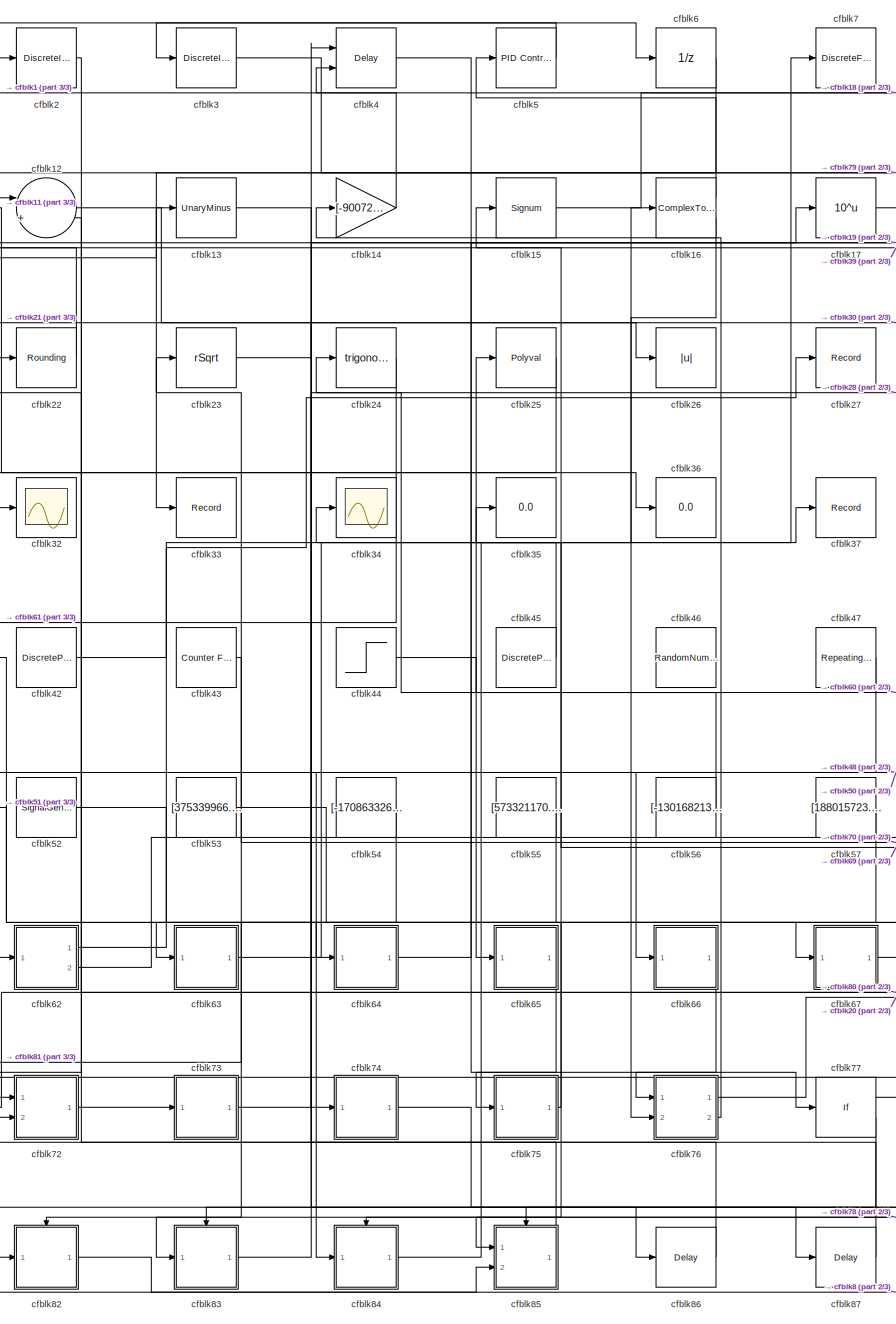
[diagram: root canvas - part 1/3, center side, full height]
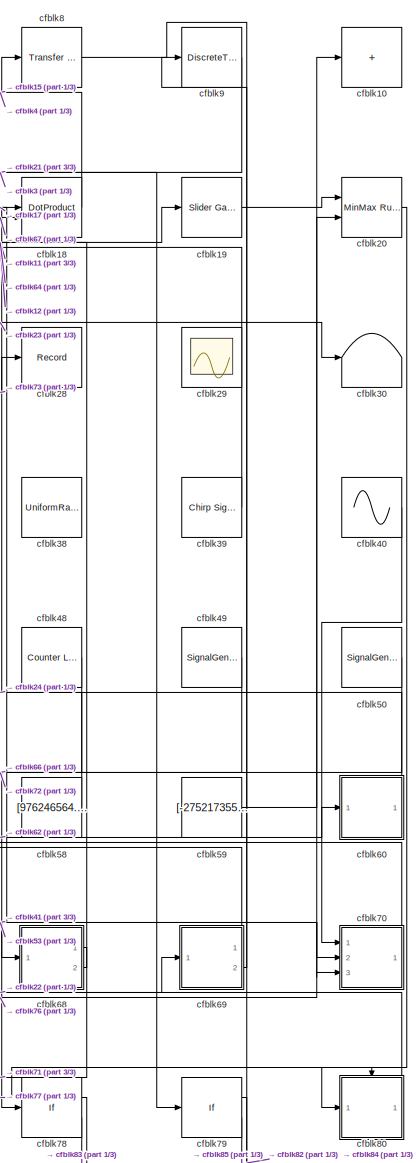
[diagram: root canvas - part 2/3, right side, full height]
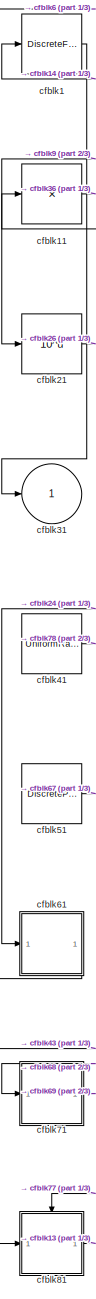
[diagram: root canvas - part 3/3, left side, full height]
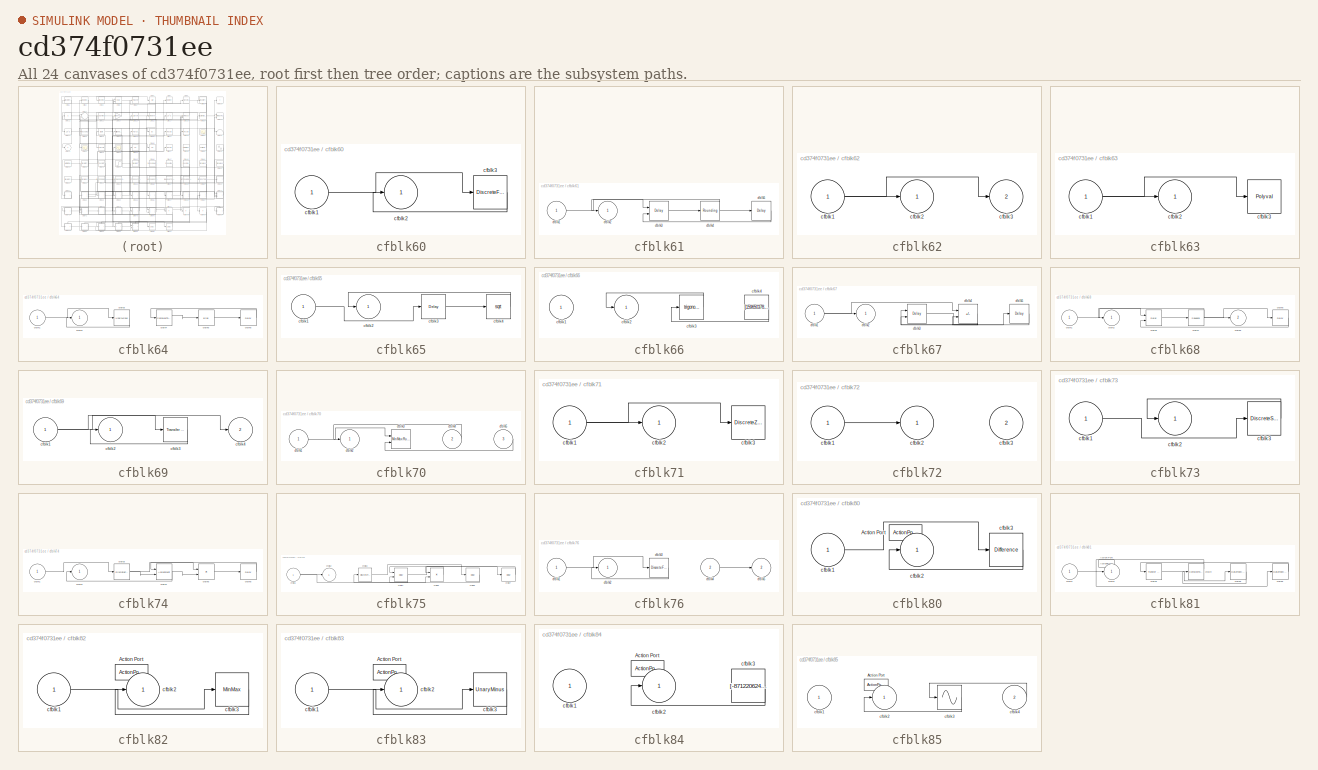
[diagram: thumbnail index - all 24 canvases of the model, root first then tree order]
MODEL slx_cd374f0731ee
KIND model
CONFIG AbsTol = auto
CONFIG EnableMultiTasking = off
CONFIG FixedStep = auto
CONFIG MaxStep = auto
CONFIG MinStep = auto
CONFIG RelTol = 1e-3
CONFIG SampleTimeConstraint = Unconstrained
CONFIG SolverName = VariableStepAuto
CONFIG StartTime = 0.0
CONFIG StopTime = 10.0
BLOCK [DiscreteFir] cfblk1
  InputPortMap = u0
  OutputPortMap = o0
  Ports = [1, 1]
  SampleTime = 1
BLOCK [Sum] cfblk10
  IconShape = rectangular
  Inputs = +
  Ports = [1, 1]
BLOCK [Product] cfblk11
  Inputs = *
  Ports = [1, 1]
BLOCK [Sum] cfblk12
  Inputs = |++
  Ports = [2, 1]
BLOCK [UnaryMinus] cfblk13
BLOCK [Gain] cfblk14
  Gain = [-900721850.191297]
BLOCK [Signum] cfblk15
BLOCK [ComplexToMagnitudeAngle] cfblk16
  Ports = [1, 2]
BLOCK [Math] cfblk17
  Operator = 10^u
  Ports = [1, 1]
BLOCK [DotProduct] cfblk18
  OutDataTypeStr = Inherit: Inherit via internal rule
BLOCK [Reference] cfblk19  REF=simulink/Math
Operations/Slider
Gain
  Ports = [1, 1]
  SourceBlock = simulink/Math\nOperations/Slider\nGain
  SourceProductBaseCode = SL
  SourceType = Slider Gain
BLOCK [DiscreteIntegrator] cfblk2
  ICPrevOutput = DiscIntNeverNeededParam
  ICPrevScaledInput = DiscIntNeverNeededParam
  InitialConditionSetting = Auto
  Ports = [1, 1]
BLOCK [Reference] cfblk20  REF=simulink/Math
Operations/MinMax
Running
Resettable
  Ports = [2, 1]
  SourceBlock = simulink/Math\nOperations/MinMax\nRunning\nResettable
  SourceProductBaseCode = SL
  SourceType = MinMax Running Resettable
BLOCK [Math] cfblk21
  Operator = 10^u
  Ports = [1, 1]
BLOCK [Rounding] cfblk22
BLOCK [Sqrt] cfblk23
  AlgorithmType = Newton-Raphson
  Operator = rSqrt
BLOCK [Trigonometry] cfblk24
  Ports = [1, 1]
BLOCK [Polyval] cfblk25
  Coefs = [ +2.081618890e-019, -1.441693666e-014, +4.719686976e-010, -8.536869453e-006, +1.621573104e-001, -8.087801117e+001 ]
BLOCK [Abs] cfblk26
  SaturateOnIntegerOverflow = off
BLOCK [Record] cfblk27
  FileSettingsInternal = {"entries":[{"content":{"excelSettings":{"content":{},"type":"Streamout.ExcelSettings"}},"type":"Streamout.FileSettingStorage","uuid":"f7dc172e-85bf-4364-b29a-430d7ad068c6"}],"packageUris":["http://schema.mathworks.com/mf0/streamout_blocks/R2020a"],"version":"1.0"}
  Ports = [1]
  SignalsInternal = {"entries":[{"content":{"signals":[{"content":{"blockPath":["sampleModel140/cfblk27"],"channel":[],"dimensions":[1],"domain":"sampleModel140/cfblk27","lineColor":"#fe330a","plots":[1],"port":1,"sid":[""],"signalID":4999,"signalName":"cfblk62:1"},"type":"RecordBlkView.Signal","uuid":"44b31170-ca03-488e-82e6-39e71cb301d7"}]},"type":"RecordBlkView.InputSignals","uuid":"1dfdc35e-76fa-4b09-975a-dfabfb6...<+99ch>
  VisualizationBindings = {"sparklinesplugin":{"info":[{"bindingParametersList":[],"subplotID":1}]}}
BLOCK [Record] cfblk28
  FileSettingsInternal = {"entries":[{"content":{"excelSettings":{"content":{},"type":"Streamout.ExcelSettings"}},"type":"Streamout.FileSettingStorage","uuid":"2a60952b-dc02-4b89-ba4a-331db7f7e870"}],"packageUris":["http://schema.mathworks.com/mf0/streamout_blocks/R2020a"],"version":"1.0"}
  Ports = [1]
  SignalsInternal = {"entries":[{"content":{"signals":[{"content":{"blockPath":["sampleModel140/cfblk28"],"channel":[],"dimensions":[1],"domain":"sampleModel140/cfblk28","lineColor":"#22b573","plots":[1],"port":1,"sid":[""],"signalID":5003,"signalName":"cfblk73"},"type":"RecordBlkView.Signal","uuid":"e06fc34c-2e52-42d5-b842-92c8cd7ea3f0"}]},"type":"RecordBlkView.InputSignals","uuid":"c913dc81-a0a4-4d49-a666-7e3ebed67...<+97ch>
  VisualizationBindings = {"sparklinesplugin":{"info":[{"bindingParametersList":[],"subplotID":1}]}}
BLOCK [Scope] cfblk29
  Floating = on
  NumInputPorts = 1
  Ports = []
BLOCK [DiscreteIntegrator] cfblk3
  ICPrevOutput = DiscIntNeverNeededParam
  ICPrevScaledInput = DiscIntNeverNeededParam
  InitialConditionSetting = Auto
  Ports = [1, 1]
BLOCK [Terminator] cfblk30
BLOCK [Outport] cfblk31
BLOCK [Scope] cfblk32
  Floating = off
  NumInputPorts = 1
  Ports = [1]
BLOCK [Record] cfblk33
  FileSettingsInternal = {"entries":[{"content":{"excelSettings":{"content":{},"type":"Streamout.ExcelSettings"}},"type":"Streamout.FileSettingStorage","uuid":"16210966-370f-487a-be88-b20549b0c51c"}],"packageUris":["http://schema.mathworks.com/mf0/streamout_blocks/R2020a"],"version":"1.0"}
  Ports = [1]
  SignalsInternal = {"entries":[{"content":{"signals":[{"content":{"blockPath":["sampleModel140/cfblk33"],"channel":[],"dimensions":[1],"domain":"sampleModel140/cfblk33","lineColor":"#0072bd","plots":[1],"port":1,"sid":[""],"signalID":5007,"signalName":"cfblk6"},"type":"RecordBlkView.Signal","uuid":"1acb6f7d-3201-4389-8d54-da06513cf801"}]},"type":"RecordBlkView.InputSignals","uuid":"1d47643f-2b85-4c86-9125-85e0580eef...<+96ch>
  VisualizationBindings = {"sparklinesplugin":{"info":[{"bindingParametersList":[],"subplotID":1}]}}
BLOCK [Scope] cfblk34
  Floating = off
  NumInputPorts = 1
  Ports = [1]
BLOCK [Display] cfblk35
  Decimation = 1
  Ports = [1]
BLOCK [Display] cfblk36
  Decimation = 1
  Ports = [1]
BLOCK [Record] cfblk37
  FileSettingsInternal = {"entries":[{"content":{"excelSettings":{"content":{},"type":"Streamout.ExcelSettings"}},"type":"Streamout.FileSettingStorage","uuid":"14486def-ea98-4c8d-ac38-063aaeb98b28"}],"packageUris":["http://schema.mathworks.com/mf0/streamout_blocks/R2020a"],"version":"1.0"}
  Ports = [1]
  SignalsInternal = {"entries":[{"content":{"signals":[{"content":{"blockPath":["sampleModel140/cfblk37"],"channel":[],"dimensions":[1],"domain":"sampleModel140/cfblk37","lineColor":"#d95319","plots":[1],"port":1,"sid":[""],"signalID":5011,"signalName":"cfblk84"},"type":"RecordBlkView.Signal","uuid":"8f6119ac-8ee8-4970-bbc5-a0b11d94bc15"}]},"type":"RecordBlkView.InputSignals","uuid":"c6b40365-cea3-4913-9b63-00ff22d66...<+97ch>
  VisualizationBindings = {"sparklinesplugin":{"info":[{"bindingParametersList":[],"subplotID":1}]}}
BLOCK [UniformRandomNumber] cfblk38
  Maximum = [4264926929.701888]
  Minimum = [-3035939554.229924]
  SampleTime = 0.1
  Seed = [60166904.000000]
BLOCK [Reference] cfblk39  REF=simulink/Sources/Chirp Signal
  Ports = [0, 1]
  SourceBlock = simulink/Sources/Chirp Signal
  SourceProductBaseCode = SL
  SourceType = chirp
BLOCK [Delay] cfblk4
  InputPortMap = u0,e6
  Ports = [2, 1]
  SampleTime = 1
  ShowEnablePort = on
BLOCK [Sin] cfblk40
  Amplitude = [-181022692.650693]
  Bias = [660369983.554749]
  Ports = [0, 1]
  SampleTime = 0
BLOCK [UniformRandomNumber] cfblk41
  Maximum = [9269629491.949644]
  Minimum = [-4870337137.228113]
  SampleTime = 0.1
  Seed = [65552154.000000]
BLOCK [DiscretePulseGenerator] cfblk42
  Amplitude = [-659661754.580511]
  Period = [42044886.973960]
  PhaseDelay = [2.000000]
  Ports = [0, 1]
  PulseType = Time based
  PulseWidth = 5
BLOCK [Reference] cfblk43  REF=simulink/Sources/Counter
Free-Running
  Ports = [0, 1]
  SourceBlock = simulink/Sources/Counter\nFree-Running
  SourceProductBaseCode = SL
  SourceType = Counter Free-Running
BLOCK [Step] cfblk44
  After = [243619837.616728]
  Before = [-869286196.761883]
  SampleTime = 0
  Time = [23.000000]
BLOCK [DiscretePulseGenerator] cfblk45
  Amplitude = [-997726001.498316]
  Period = [30101274.943026]
  PhaseDelay = [1.000000]
  Ports = [0, 1]
  PulseType = Time based
  PulseWidth = 5
BLOCK [RandomNumber] cfblk46
  Mean = [-29909.071148]
  SampleTime = 0.1
  Seed = [277614957.000000]
  Variance = [18577.204154]
BLOCK [Reference] cfblk47  REF=simulink/Sources/Repeating
Sequence
Stair
  Ports = [0, 1]
  SourceBlock = simulink/Sources/Repeating\nSequence\nStair
  SourceProductBaseCode = SL
  SourceType = Repeating Sequence Stair
BLOCK [Reference] cfblk48  REF=simulink/Sources/Counter
Limited
  Ports = [0, 1]
  SourceBlock = simulink/Sources/Counter\nLimited
  SourceProductBaseCode = SL
  SourceType = Counter Limited
BLOCK [SignalGenerator] cfblk49
  Amplitude = [37695379.344834]
  Ports = [0, 1]
  Units = rad/sec
  WaveForm = square
BLOCK [Reference] cfblk5  REF=slpidlib/PID Controller
  Ports = [1, 1]
  SourceBlock = slpidlib/PID Controller
  SourceProductBaseCode = SL
  SourceType = PID 1dof
BLOCK [SignalGenerator] cfblk50
  Amplitude = [-270396311.302956]
  Ports = [0, 1]
  WaveForm = square
BLOCK [DiscretePulseGenerator] cfblk51
  Amplitude = [-700277655.752737]
  Period = [70162605.232993]
  PhaseDelay = [7.000000]
  Ports = [0, 1]
  PulseType = Time based
  PulseWidth = 5
BLOCK [SignalGenerator] cfblk52
  Amplitude = [862125545.845058]
  Ports = [0, 1]
  WaveForm = sawtooth
BLOCK [Constant] cfblk53
  SampleTime = 1
  Value = [375339966.909652]
BLOCK [Constant] cfblk54
  SampleTime = 1
  Value = [-170863326.489674]
BLOCK [Constant] cfblk55
  SampleTime = 1
  Value = [573321170.650312]
BLOCK [Constant] cfblk56
  SampleTime = 1
  Value = [-130168213.207783]
BLOCK [Constant] cfblk57
  SampleTime = 1
  Value = [188015723.022929]
BLOCK [Constant] cfblk58
  SampleTime = 1
  Value = [976246564.933237]
BLOCK [Constant] cfblk59
  SampleTime = 1
  Value = [-275217355.528524]
BLOCK [UnitDelay] cfblk6
  HasFrameUpgradeWarning = on
BLOCK [SubSystem] cfblk60
  Ports = [1, 1]
  RequestExecContextInheritance = off
BLOCK [Inport] cfblk60/cfblk1
BLOCK [Outport] cfblk60/cfblk2
BLOCK [DiscreteFir] cfblk60/cfblk3
  InputPortMap = u0
  OutputPortMap = o0
  Ports = [1, 1]
  SampleTime = 1
BLOCK [SubSystem] cfblk61
  Ports = [1, 1]
  RequestExecContextInheritance = off
BLOCK [Inport] cfblk61/cfblk1
BLOCK [Outport] cfblk61/cfblk2
BLOCK [Delay] cfblk61/cfblk3
  DelayLengthSource = Input port
  InputPortMap = u0,p1
  Ports = [2, 1]
  SampleTime = 1
BLOCK [Rounding] cfblk61/cfblk4
BLOCK [Delay] cfblk61/cfblk5
  InputPortMap = u0
  Ports = [1, 1]
  SampleTime = 1
BLOCK [SubSystem] cfblk62
  Ports = [1, 2]
  RequestExecContextInheritance = off
BLOCK [Inport] cfblk62/cfblk1
BLOCK [Outport] cfblk62/cfblk2
BLOCK [Outport] cfblk62/cfblk3
  Port = 2
BLOCK [SubSystem] cfblk63
  Ports = [1, 1]
  RequestExecContextInheritance = off
BLOCK [Inport] cfblk63/cfblk1
BLOCK [Outport] cfblk63/cfblk2
BLOCK [Polyval] cfblk63/cfblk3
  Coefs = [ +2.081618890e-019, -1.441693666e-014, +4.719686976e-010, -8.536869453e-006, +1.621573104e-001, -8.087801117e+001 ]
BLOCK [SubSystem] cfblk64
  Ports = [1, 1]
  RequestExecContextInheritance = off
BLOCK [Inport] cfblk64/cfblk1
BLOCK [Outport] cfblk64/cfblk2
BLOCK [UnaryMinus] cfblk64/cfblk3
BLOCK [ComplexToRealImag] cfblk64/cfblk4
  Ports = [1, 2]
BLOCK [Bias] cfblk64/cfblk5
  Bias = [622856134.513516]
  SaturateOnIntegerOverflow = off
BLOCK [Delay] cfblk64/cfblk6
  InputPortMap = u0
  Ports = [1, 1]
  SampleTime = 1
BLOCK [SubSystem] cfblk65
  Ports = [1, 1]
  RequestExecContextInheritance = off
BLOCK [Inport] cfblk65/cfblk1
BLOCK [Outport] cfblk65/cfblk2
BLOCK [Delay] cfblk65/cfblk3
  InputPortMap = u0
  Ports = [1, 1]
  SampleTime = 1
BLOCK [Sqrt] cfblk65/cfblk4
BLOCK [SubSystem] cfblk66
  Ports = [1, 1]
  RequestExecContextInheritance = off
BLOCK [Inport] cfblk66/cfblk1
BLOCK [Outport] cfblk66/cfblk2
BLOCK [Trigonometry] cfblk66/cfblk3
  Ports = [1, 1]
BLOCK [Constant] cfblk66/cfblk4
  SampleTime = 1
  Value = [159650378.742997]
BLOCK [SubSystem] cfblk67
  Ports = [1, 1]
  RequestExecContextInheritance = off
BLOCK [Inport] cfblk67/cfblk1
BLOCK [Outport] cfblk67/cfblk2
BLOCK [Delay] cfblk67/cfblk3
  DelayLengthSource = Input port
  InputPortMap = u0,p1
  Ports = [2, 1]
  SampleTime = 1
BLOCK [Sum] cfblk67/cfblk4
  IconShape = rectangular
  Inputs = -+
  Ports = [2, 1]
BLOCK [Delay] cfblk67/cfblk5
  InputPortMap = u0
  Ports = [1, 1]
  SampleTime = 1
BLOCK [SubSystem] cfblk68
  Ports = [1, 2]
  RequestExecContextInheritance = off
BLOCK [Inport] cfblk68/cfblk1
BLOCK [Outport] cfblk68/cfblk2
BLOCK [Delay] cfblk68/cfblk3
  InputPortMap = u0,e6
  Ports = [2, 1]
  SampleTime = 1
  ShowEnablePort = on
BLOCK [Squeeze] cfblk68/cfblk4
BLOCK [Outport] cfblk68/cfblk5
  Port = 2
BLOCK [Delay] cfblk68/cfblk6
  InputPortMap = u0
  Ports = [1, 1]
  SampleTime = 1
BLOCK [SubSystem] cfblk69
  Ports = [1, 2]
  RequestExecContextInheritance = off
BLOCK [Inport] cfblk69/cfblk1
BLOCK [Outport] cfblk69/cfblk2
BLOCK [Reference] cfblk69/cfblk3  REF=simulink/Discrete/Transfer Fcn
Real Zero
  Ports = [1, 1]
  SourceBlock = simulink/Discrete/Transfer Fcn\nReal Zero
  SourceProductBaseCode = SL
  SourceType = Transfer Fcn Real Zero
BLOCK [Outport] cfblk69/cfblk4
  Port = 2
BLOCK [DiscreteFir] cfblk7
  InputPortMap = u0
  OutputPortMap = o0
  Ports = [1, 1]
  SampleTime = 1
BLOCK [SubSystem] cfblk70
  Ports = [3, 1]
  RequestExecContextInheritance = off
BLOCK [Inport] cfblk70/cfblk1
BLOCK [Outport] cfblk70/cfblk2
BLOCK [Reference] cfblk70/cfblk3  REF=simulink/Math
Operations/MinMax
Running
Resettable
  Ports = [2, 1]
  SourceBlock = simulink/Math\nOperations/MinMax\nRunning\nResettable
  SourceProductBaseCode = SL
  SourceType = MinMax Running Resettable
BLOCK [Inport] cfblk70/cfblk4
  Port = 2
BLOCK [Inport] cfblk70/cfblk5
  Port = 3
BLOCK [SubSystem] cfblk71
  Ports = [1, 1]
  RequestExecContextInheritance = off
BLOCK [Inport] cfblk71/cfblk1
BLOCK [Outport] cfblk71/cfblk2
BLOCK [DiscreteZeroPole] cfblk71/cfblk3
  Gain = 1
  Poles = [0 0.5]
BLOCK [SubSystem] cfblk72
  Ports = [2, 1]
  RequestExecContextInheritance = off
BLOCK [Inport] cfblk72/cfblk1
BLOCK [Outport] cfblk72/cfblk2
BLOCK [Inport] cfblk72/cfblk3
  Port = 2
BLOCK [SubSystem] cfblk73
  Ports = [1, 1]
  RequestExecContextInheritance = off
BLOCK [Inport] cfblk73/cfblk1
BLOCK [Outport] cfblk73/cfblk2
BLOCK [DiscreteStateSpace] cfblk73/cfblk3
BLOCK [SubSystem] cfblk74
  Ports = [1, 1]
  RequestExecContextInheritance = off
BLOCK [Inport] cfblk74/cfblk1
BLOCK [Outport] cfblk74/cfblk2
BLOCK [DiscreteFilter] cfblk74/cfblk3
  InputPortMap = u0
  Ports = [1, 1]
  SampleTime = 1
BLOCK [Assignment] cfblk74/cfblk4
  DiagnosticForDimensions = Warning
  IndexOptions = Index vector (dialog)
  Indices = 1
  OutputSizes = 1
  Ports = [2, 1]
BLOCK [Product] cfblk74/cfblk5
  Ports = [2, 1]
BLOCK [Delay] cfblk74/cfblk6
  InputPortMap = u0
  Ports = [1, 1]
  SampleTime = 1
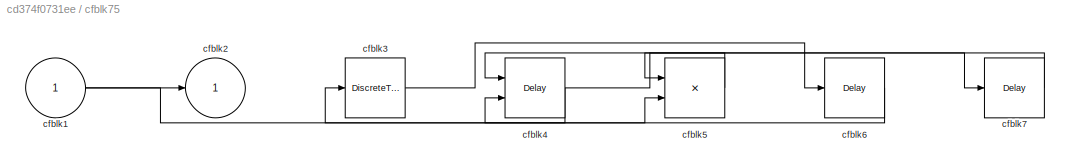
BLOCK [SubSystem] cfblk75
  Ports = [1, 1]
  RequestExecContextInheritance = off
BLOCK [Inport] cfblk75/cfblk1
BLOCK [Outport] cfblk75/cfblk2
BLOCK [DiscreteTransferFcn] cfblk75/cfblk3
  InputPortMap = u0
  Ports = [1, 1]
  SampleTime = 1
BLOCK [Delay] cfblk75/cfblk4
  DelayLengthSource = Input port
  InputPortMap = u0,p1
  Ports = [2, 1]
  SampleTime = 1
BLOCK [Product] cfblk75/cfblk5
  Ports = [2, 1]
BLOCK [Delay] cfblk75/cfblk6
  InputPortMap = u0
  Ports = [1, 1]
  SampleTime = 1
BLOCK [Delay] cfblk75/cfblk7
  InputPortMap = u0
  Ports = [1, 1]
  SampleTime = 1
BLOCK [SubSystem] cfblk76
  Ports = [2, 2]
  RequestExecContextInheritance = off
BLOCK [Inport] cfblk76/cfblk1
BLOCK [Outport] cfblk76/cfblk2
BLOCK [DiscreteFilter] cfblk76/cfblk3
  InputPortMap = u0
  Ports = [1, 1]
  SampleTime = 1
BLOCK [Inport] cfblk76/cfblk4
  Port = 2
BLOCK [Outport] cfblk76/cfblk5
  Port = 2
BLOCK [If] cfblk77
  IfExpression = u1 >= 0
  Ports = [1, 2]
  SampleTime = 1
BLOCK [If] cfblk78
  IfExpression = u1 >= 0
  Ports = [1, 2]
  SampleTime = 1
BLOCK [If] cfblk79
  IfExpression = u1 >= 0
  Ports = [1, 2]
  SampleTime = 1
BLOCK [Reference] cfblk8  REF=simulink/Discrete/Transfer Fcn
First Order
  Ports = [1, 1]
  SourceBlock = simulink/Discrete/Transfer Fcn\nFirst Order
  SourceProductBaseCode = SL
  SourceType = First Order Transfer Fcn
BLOCK [SubSystem] cfblk80
  Ports = [1, 1, 0, 0, 0, 0, 0, 1]
  RequestExecContextInheritance = off
  TreatAsAtomicUnit = on
BLOCK [ActionPort] cfblk80/Action Port
  ActionPortLabel = if(u1 >= 0)
BLOCK [Inport] cfblk80/cfblk1
BLOCK [Outport] cfblk80/cfblk2
BLOCK [Reference] cfblk80/cfblk3  REF=simulink/Discrete/Difference
  Ports = [1, 1]
  SourceBlock = simulink/Discrete/Difference
  SourceProductBaseCode = SL
  SourceType = Difference
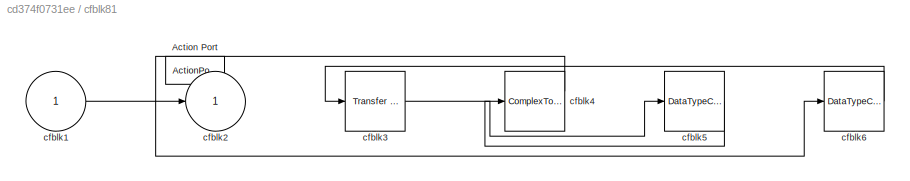
BLOCK [SubSystem] cfblk81
  Ports = [1, 1, 0, 0, 0, 0, 0, 1]
  RequestExecContextInheritance = off
  TreatAsAtomicUnit = on
BLOCK [ActionPort] cfblk81/Action Port
  ActionPortLabel = else
BLOCK [Inport] cfblk81/cfblk1
BLOCK [Outport] cfblk81/cfblk2
BLOCK [Reference] cfblk81/cfblk3  REF=simulink/Discrete/Transfer Fcn
Real Zero
  Ports = [1, 1]
  SourceBlock = simulink/Discrete/Transfer Fcn\nReal Zero
  SourceProductBaseCode = SL
  SourceType = Transfer Fcn Real Zero
BLOCK [ComplexToMagnitudeAngle] cfblk81/cfblk4
  Ports = [1, 2]
BLOCK [DataTypeConversion] cfblk81/cfblk5
  RndMeth = Floor
  SaturateOnIntegerOverflow = off
BLOCK [DataTypeConversion] cfblk81/cfblk6
  RndMeth = Floor
  SaturateOnIntegerOverflow = off
BLOCK [SubSystem] cfblk82
  Ports = [1, 1, 0, 0, 0, 0, 0, 1]
  RequestExecContextInheritance = off
  TreatAsAtomicUnit = on
BLOCK [ActionPort] cfblk82/Action Port
  ActionPortLabel = if(u1 >= 0)
BLOCK [Inport] cfblk82/cfblk1
BLOCK [Outport] cfblk82/cfblk2
BLOCK [MinMax] cfblk82/cfblk3
  Ports = [1, 1]
BLOCK [SubSystem] cfblk83
  Ports = [1, 1, 0, 0, 0, 0, 0, 1]
  RequestExecContextInheritance = off
  TreatAsAtomicUnit = on
BLOCK [ActionPort] cfblk83/Action Port
  ActionPortLabel = else
BLOCK [Inport] cfblk83/cfblk1
BLOCK [Outport] cfblk83/cfblk2
BLOCK [UnaryMinus] cfblk83/cfblk3
BLOCK [SubSystem] cfblk84
  Ports = [1, 1, 0, 0, 0, 0, 0, 1]
  RequestExecContextInheritance = off
  TreatAsAtomicUnit = on
BLOCK [ActionPort] cfblk84/Action Port
  ActionPortLabel = if(u1 >= 0)
BLOCK [Inport] cfblk84/cfblk1
BLOCK [Outport] cfblk84/cfblk2
BLOCK [Constant] cfblk84/cfblk3
  SampleTime = 1
  Value = [-871220624.482692]
BLOCK [SubSystem] cfblk85
  Ports = [2, 1, 0, 0, 0, 0, 0, 1]
  RequestExecContextInheritance = off
  TreatAsAtomicUnit = on
BLOCK [ActionPort] cfblk85/Action Port
  ActionPortLabel = else
BLOCK [Inport] cfblk85/cfblk1
BLOCK [Outport] cfblk85/cfblk2
BLOCK [Sin] cfblk85/cfblk3
  Ports = [1, 1]
  SampleTime = 0
  TimeSource = Use external signal
BLOCK [Inport] cfblk85/cfblk4
  Port = 2
BLOCK [Delay] cfblk86
  InputPortMap = u0
  Ports = [1, 1]
  SampleTime = 1
BLOCK [Delay] cfblk87
  InputPortMap = u0
  Ports = [1, 1]
  SampleTime = 1
BLOCK [DiscreteTransferFcn] cfblk9
  InputPortMap = u0
  Ports = [1, 1]
  SampleTime = 1
LINE cfblk11:1 -> cfblk36:1
LINE cfblk12:1 -> cfblk74:1
LINE cfblk13:1 -> cfblk86:1
LINE cfblk14:1 -> cfblk1:1
LINE cfblk15:1 -> cfblk8:1
LINE cfblk16:1 -> cfblk5:1
LINE cfblk16:2 -> cfblk76:2
LINE cfblk17:1 -> cfblk70:2
LINE cfblk18:1 -> cfblk4:2
LINE cfblk19:1 -> cfblk20:1
LINE cfblk1:1 -> cfblk31:1
LINE cfblk20:1 -> cfblk80:1
LINE cfblk21:1 -> cfblk26:1
LINE cfblk22:1 -> cfblk2:1
LINE cfblk23:1 -> cfblk30:1
LINE cfblk24:1 -> cfblk61:1
LINE cfblk25:1 -> cfblk32:1
LINE cfblk2:1 -> cfblk72:1
LINE cfblk39:1 -> cfblk12:1
LINE cfblk3:1 -> cfblk79:1
LINE cfblk40:1 -> cfblk70:1
LINE cfblk41:1 -> cfblk78:1
LINE cfblk42:1 -> cfblk16:1
LINE cfblk43:1 -> cfblk81:1
LINE cfblk44:1 -> cfblk65:1
LINE cfblk45:1 -> cfblk34:1
LINE cfblk47:1 -> cfblk64:1
LINE cfblk48:1 -> cfblk66:1
LINE cfblk49:1 -> cfblk68:1
LINE cfblk4:1 -> cfblk77:1
LINE cfblk50:1 -> cfblk72:2
LINE cfblk51:1 -> cfblk67:1
LINE cfblk52:1 -> cfblk84:1
LINE cfblk53:1 -> cfblk70:3
LINE cfblk54:1 -> cfblk63:1
LINE cfblk55:1 -> cfblk83:1
LINE cfblk56:1 -> cfblk25:1
LINE cfblk57:1 -> cfblk85:1
LINE cfblk58:1 -> cfblk18:1
LINE cfblk59:1 -> cfblk10:1
LINE cfblk5:1 -> cfblk3:1
LINE cfblk60/cfblk1:1 -> cfblk60/cfblk3:1
LINE cfblk60/cfblk3:1 -> cfblk60/cfblk2:1
LINE cfblk60:1 -> cfblk24:1
LINE cfblk61/cfblk1:1 -> cfblk61/cfblk3:1
LINE cfblk61/cfblk3:1 -> cfblk61/cfblk4:1
NET cfblk61/cfblk4:1 -> cfblk61/cfblk2:1, cfblk61/cfblk5:1
LINE cfblk61/cfblk5:1 -> cfblk61/cfblk3:2
LINE cfblk61:1 -> cfblk6:1
NET cfblk62/cfblk1:1 -> cfblk62/cfblk2:1, cfblk62/cfblk3:1
LINE cfblk62:1 -> cfblk27:1
LINE cfblk62:2 -> cfblk60:1
NET cfblk63/cfblk1:1 -> cfblk63/cfblk2:1, cfblk63/cfblk3:1
LINE cfblk63:1 -> cfblk7:1
LINE cfblk64/cfblk1:1 -> cfblk64/cfblk3:1
LINE cfblk64/cfblk3:1 -> cfblk64/cfblk2:1
LINE cfblk64/cfblk4:1 -> cfblk64/cfblk5:1
LINE cfblk64/cfblk5:1 -> cfblk64/cfblk6:1
LINE cfblk64/cfblk6:1 -> cfblk64/cfblk4:1
LINE cfblk64:1 -> cfblk19:1
LINE cfblk65/cfblk1:1 -> cfblk65/cfblk3:1
LINE cfblk65/cfblk3:1 -> cfblk65/cfblk4:1
LINE cfblk65/cfblk4:1 -> cfblk65/cfblk2:1
LINE cfblk65:1 -> cfblk75:1
LINE cfblk66/cfblk3:1 -> cfblk66/cfblk2:1
LINE cfblk66/cfblk4:1 -> cfblk66/cfblk3:1
LINE cfblk66:1 -> cfblk76:1
NET cfblk67/cfblk1:1 -> cfblk67/cfblk2:1, cfblk67/cfblk4:1
LINE cfblk67/cfblk3:1 -> cfblk67/cfblk5:1
NET cfblk67/cfblk4:1 -> cfblk67/cfblk3:1, cfblk67/cfblk3:2
LINE cfblk67/cfblk5:1 -> cfblk67/cfblk4:2
LINE cfblk67:1 -> cfblk18:2
LINE cfblk68/cfblk1:1 -> cfblk68/cfblk3:1
LINE cfblk68/cfblk3:1 -> cfblk68/cfblk4:1
NET cfblk68/cfblk4:1 -> cfblk68/cfblk2:1, cfblk68/cfblk5:1, cfblk68/cfblk6:1
LINE cfblk68/cfblk6:1 -> cfblk68/cfblk3:2
LINE cfblk68:1 -> cfblk71:1
LINE cfblk68:2 -> cfblk11:1
NET cfblk69/cfblk1:1 -> cfblk69/cfblk3:1, cfblk69/cfblk4:1
LINE cfblk69/cfblk3:1 -> cfblk69/cfblk2:1
LINE cfblk69:1 -> cfblk15:1
LINE cfblk69:2 -> cfblk9:1
LINE cfblk6:1 -> cfblk33:1
LINE cfblk70/cfblk1:1 -> cfblk70/cfblk3:1
LINE cfblk70/cfblk4:1 -> cfblk70/cfblk2:1
LINE cfblk70/cfblk5:1 -> cfblk70/cfblk3:2
LINE cfblk70:1 -> cfblk23:1
NET cfblk71/cfblk1:1 -> cfblk71/cfblk2:1, cfblk71/cfblk3:1
LINE cfblk71:1 -> cfblk69:1
LINE cfblk72/cfblk1:1 -> cfblk72/cfblk2:1
LINE cfblk72:1 -> cfblk73:1
LINE cfblk73/cfblk1:1 -> cfblk73/cfblk3:1
LINE cfblk73/cfblk3:1 -> cfblk73/cfblk2:1
LINE cfblk73:1 -> cfblk28:1
LINE cfblk74/cfblk1:1 -> cfblk74/cfblk3:1
NET cfblk74/cfblk3:1 -> cfblk74/cfblk4:2, cfblk74/cfblk5:1
NET cfblk74/cfblk4:1 -> cfblk74/cfblk2:1, cfblk74/cfblk5:2
LINE cfblk74/cfblk5:1 -> cfblk74/cfblk6:1
LINE cfblk74/cfblk6:1 -> cfblk74/cfblk4:1
LINE cfblk74:1 -> cfblk87:1
NET cfblk75/cfblk1:1 -> cfblk75/cfblk2:1, cfblk75/cfblk5:2
LINE cfblk75/cfblk3:1 -> cfblk75/cfblk6:1
NET cfblk75/cfblk4:1 -> cfblk75/cfblk3:1, cfblk75/cfblk7:1
LINE cfblk75/cfblk5:1 -> cfblk75/cfblk4:1
LINE cfblk75/cfblk6:1 -> cfblk75/cfblk4:2
LINE cfblk75/cfblk7:1 -> cfblk75/cfblk5:1
LINE cfblk75:1 -> cfblk35:1
LINE cfblk76/cfblk1:1 -> cfblk76/cfblk3:1
LINE cfblk76/cfblk3:1 -> cfblk76/cfblk2:1
LINE cfblk76/cfblk4:1 -> cfblk76/cfblk5:1
LINE cfblk76:1 -> cfblk20:2
LINE cfblk76:2 -> cfblk14:1
LINE cfblk77:1 -> cfblk80:ifaction
LINE cfblk77:2 -> cfblk81:ifaction
LINE cfblk78:1 -> cfblk82:ifaction
LINE cfblk78:2 -> cfblk83:ifaction
LINE cfblk79:1 -> cfblk84:ifaction
LINE cfblk79:2 -> cfblk85:ifaction
LINE cfblk80/cfblk1:1 -> cfblk80/cfblk3:1
LINE cfblk80/cfblk3:1 -> cfblk80/cfblk2:1
LINE cfblk80:1 -> cfblk22:1
LINE cfblk81/cfblk1:1 -> cfblk81/cfblk6:1
LINE cfblk81/cfblk3:1 -> cfblk81/cfblk5:1
LINE cfblk81/cfblk4:1 -> cfblk81/cfblk2:1
LINE cfblk81/cfblk5:1 -> cfblk81/cfblk4:1
LINE cfblk81/cfblk6:1 -> cfblk81/cfblk3:1
LINE cfblk81:1 -> cfblk13:1
LINE cfblk82/cfblk1:1 -> cfblk82/cfblk3:1
LINE cfblk82/cfblk3:1 -> cfblk82/cfblk2:1
LINE cfblk82:1 -> cfblk85:2
LINE cfblk83/cfblk1:1 -> cfblk83/cfblk3:1
LINE cfblk83/cfblk3:1 -> cfblk83/cfblk2:1
LINE cfblk83:1 -> cfblk17:1
LINE cfblk84/cfblk3:1 -> cfblk84/cfblk2:1
LINE cfblk84:1 -> cfblk37:1
LINE cfblk85/cfblk3:1 -> cfblk85/cfblk2:1
LINE cfblk85/cfblk4:1 -> cfblk85/cfblk3:1
LINE cfblk85:1 -> cfblk62:1
LINE cfblk86:1 -> cfblk4:1
LINE cfblk87:1 -> cfblk12:2
LINE cfblk8:1 -> cfblk82:1
LINE cfblk9:1 -> cfblk21:1
note: NET lines group one-source signal fan-out (src -> all destinations, sorted); 1:1 wires keep LINE
